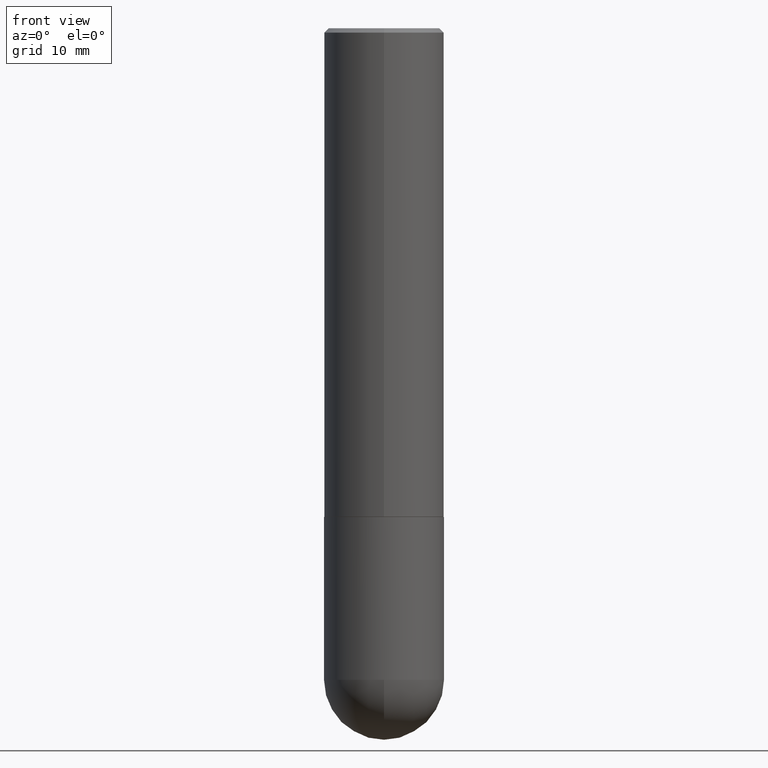
[diagram: clean part render]
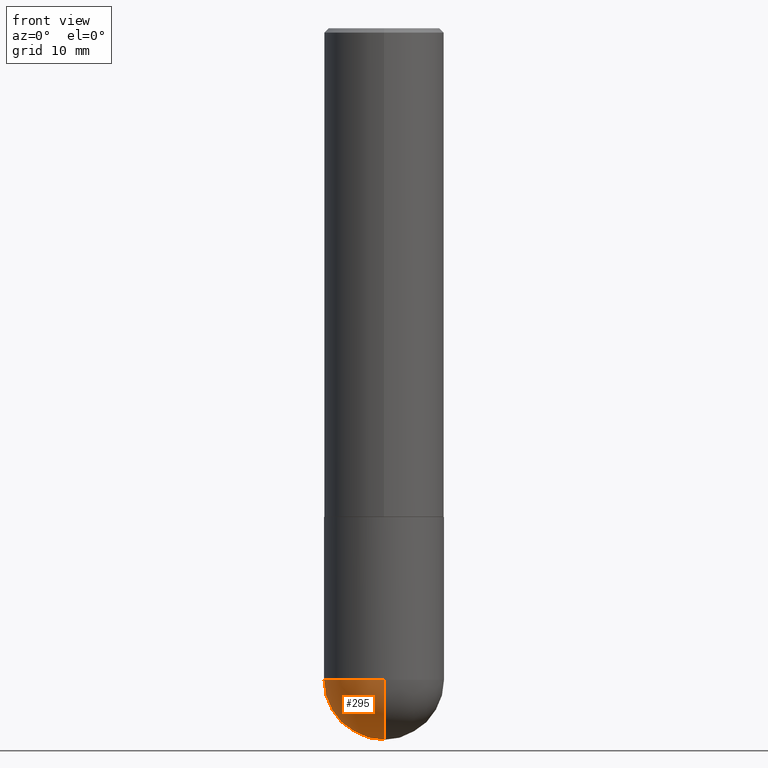
[diagram: same view with one face highlighted and labeled with its STEP entity id]
A machine part, front view. The second image highlights one B-rep face of the part: STEP entity #295.
In plain terms, the highlighted spherical surface has radius 7.0002 mm.
Its self-contained STEP definition (entity closure, byte-faithful):
#11 = DIRECTION ( 'NONE',  ( 1.000000000000000000, -6.982962677686264344E-15, 0.000000000000000000 ) ) ;
#15 = VERTEX_POINT ( 'NONE', #307 ) ;
#27 = AXIS2_PLACEMENT_3D ( 'NONE', #253, #380, #274 ) ;
#33 = CIRCLE ( 'NONE', #176, 0.2756000000000000671 ) ;
#36 = EDGE_CURVE ( 'NONE', #15, #300, #316, .T. ) ;
#54 = DIRECTION ( 'NONE',  ( 6.982962677686265922E-15, 1.000000000000000000, 0.000000000000000000 ) ) ;
#59 = DIRECTION ( 'NONE',  ( 1.000000000000000000, -6.982962677686265922E-15, 4.883557194083112340E-29 ) ) ;
#68 = CIRCLE ( 'NONE', #259, 0.2756000000000003447 ) ;
#70 = EDGE_CURVE ( 'NONE', #314, #300, #185, .T. ) ;
#84 = AXIS2_PLACEMENT_3D ( 'NONE', #279, #214, #128 ) ;
#116 = CARTESIAN_POINT ( 'NONE',  ( -1.958255779754765592E-15, -0.2756000000000108918, -2.992099999999998872 ) ) ;
#128 = DIRECTION ( 'NONE',  ( -7.105427357601001859E-15, -1.000000000000000000, 0.000000000000000000 ) ) ;
#141 = CARTESIAN_POINT ( 'NONE',  ( 7.671722831522178326E-29, -1.186642030618554829E-14, -3.267700000000000049 ) ) ;
#145 = ORIENTED_EDGE ( 'NONE', *, *, #399, .F. ) ;
#156 = ORIENTED_EDGE ( 'NONE', *, *, #70, .T. ) ;
#172 = CARTESIAN_POINT ( 'NONE',  ( 6.985967437072660867E-29, -1.092104368209262610E-14, -2.992100000000000204 ) ) ;
#176 = AXIS2_PLACEMENT_3D ( 'NONE', #189, #270, #11 ) ;
#185 = CIRCLE ( 'NONE', #84, 0.2756000000000003447 ) ;
#189 = CARTESIAN_POINT ( 'NONE',  ( 7.317087214986547114E-29, -1.044686131395257581E-14, -2.992100000000000204 ) ) ;
#203 = VERTEX_POINT ( 'NONE', #258 ) ;
#214 = DIRECTION ( 'NONE',  ( -1.000000000000000000, 7.105427357601001070E-15, -4.926315508542082329E-29 ) ) ;
#231 = EDGE_LOOP ( 'NONE', ( #145, #156, #404, #264 ) ) ;
#233 = FACE_OUTER_BOUND ( 'NONE', #231, .T. ) ;
#239 = DIRECTION ( 'NONE',  ( -1.000000000000000000, 6.982962677686265922E-15, -4.883557194083112340E-29 ) ) ;
#253 = CARTESIAN_POINT ( 'NONE',  ( 7.317087214986547114E-29, -1.044686131395257581E-14, -2.992100000000000204 ) ) ;
#258 = CARTESIAN_POINT ( 'NONE',  ( 1.924504513970407924E-15, 0.2755999999999895200, -2.992100000000001092 ) ) ;
#259 = AXIS2_PLACEMENT_3D ( 'NONE', #306, #59, #54 ) ;
#264 = ORIENTED_EDGE ( 'NONE', *, *, #327, .F. ) ;
#270 = DIRECTION ( 'NONE',  ( -2.445468806185136597E-29, 3.491481338843145583E-15, 1.000000000000000000 ) ) ;
#274 = DIRECTION ( 'NONE',  ( 1.000000000000000000, -6.982962677686264344E-15, 0.000000000000000000 ) ) ;
#279 = CARTESIAN_POINT ( 'NONE',  ( 6.985967437072660867E-29, -1.092104368209262610E-14, -2.992100000000000204 ) ) ;
#295 = ADVANCED_FACE ( 'NONE', ( #233 ), #359, .T. ) ;
#298 = DIRECTION ( 'NONE',  ( 6.982962677686265922E-15, 1.000000000000000000, -3.964946289788475374E-15 ) ) ;
#300 = VERTEX_POINT ( 'NONE', #116 ) ;
#306 = CARTESIAN_POINT ( 'NONE',  ( 6.985967437072660867E-29, -1.092104368209262610E-14, -2.992100000000000204 ) ) ;
#307 = CARTESIAN_POINT ( 'NONE',  ( -0.2756000000000000671, -7.182791513470404062E-15, -2.992100000000000204 ) ) ;
#314 = VERTEX_POINT ( 'NONE', #141 ) ;
#316 = CIRCLE ( 'NONE', #27, 0.2756000000000000671 ) ;
#327 = EDGE_CURVE ( 'NONE', #203, #15, #33, .T. ) ;
#359 = SPHERICAL_SURFACE ( 'NONE', #367, 0.2756000000000003447 ) ;
#367 = AXIS2_PLACEMENT_3D ( 'NONE', #172, #239, #298 ) ;
#380 = DIRECTION ( 'NONE',  ( -2.445468806185136597E-29, 3.491481338843145583E-15, 1.000000000000000000 ) ) ;
#399 = EDGE_CURVE ( 'NONE', #314, #203, #68, .T. ) ;
#404 = ORIENTED_EDGE ( 'NONE', *, *, #36, .F. ) ;